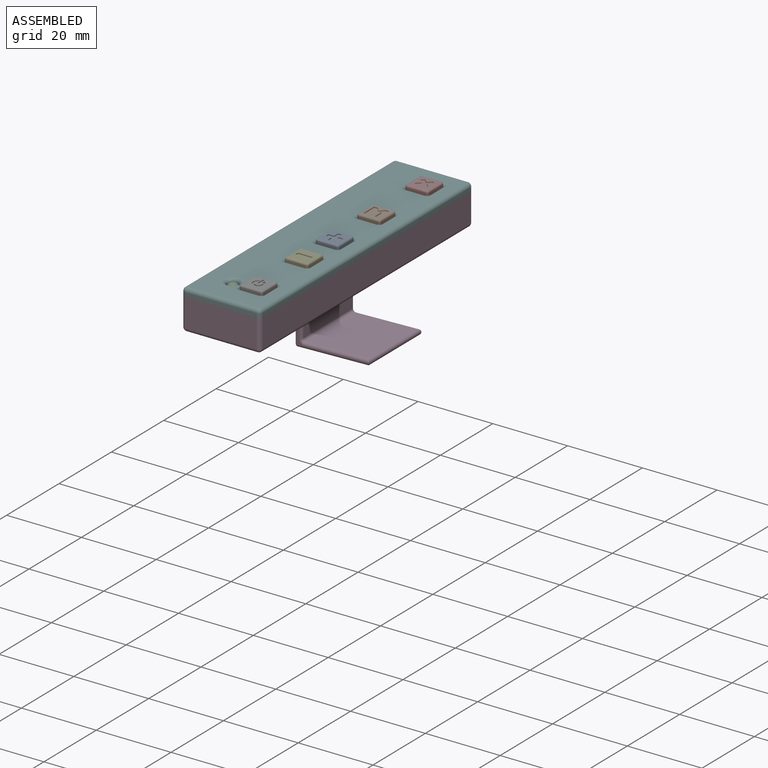
[diagram: assembled view]
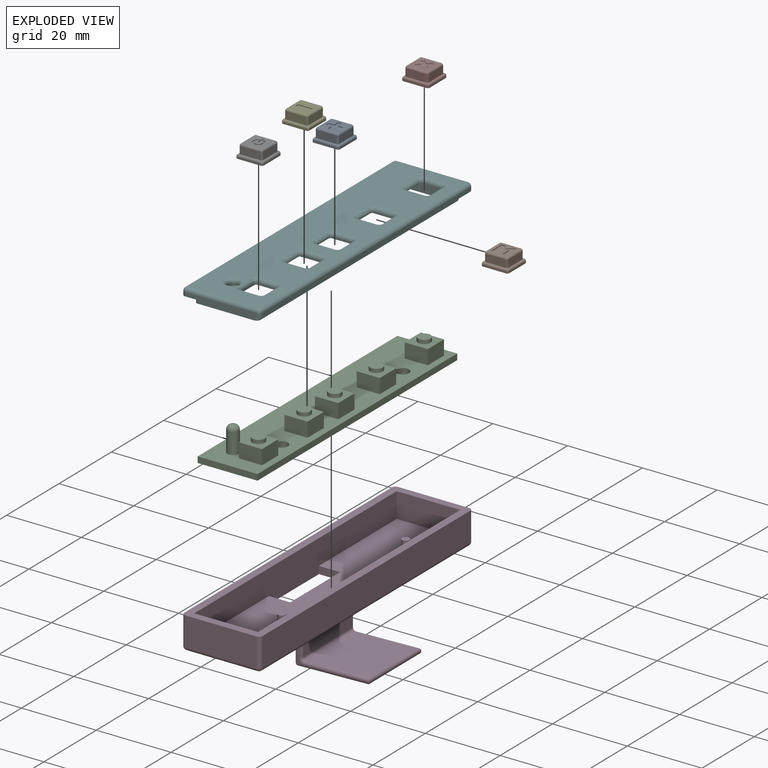
[diagram: exploded view]
GUIDED TOUR — MATED ASSEMBLY (Onshape document 3a90e2de162989032cab6924, AutoMate assembly 3a90e2de162989032cab6924_4101e83d1f49765928c57344_8ebfec06155e168b13daeaef_default)

This assembly has 8 components, labeled P0..P7 below (a component is one placed occurrence of a part; the same part can appear more than once), held together by 7 mates. A mate is a constraint between two components; its type names the relative motion it leaves free:
  PLANAR — leaves sliding in the plane through the listed point (normal = the listed direction) and rotation about that normal free.
Axis/direction vectors are unit vectors and 'through' points are millimeter coordinates, both in the assembly's world frame.

MATES
  1. PLANAR "Planar 6": P1 <-> P2, direction (0.000, 0.000, -1.000) through (2.96, 14.20, 5.10) mm
  2. PLANAR "Planar 4": P4 <-> P2, direction (0.000, 0.000, -1.000) through (2.96, -13.40, 5.10) mm
  3. PLANAR "Planar 7": P7 <-> P2, direction (0.000, 0.000, -1.000) through (2.96, 32.50, 5.10) mm
  4. PLANAR "Planar 1": P3 <-> P2, direction (0.000, 0.000, 1.000) through (0.30, -0.01, -1.40) mm
  5. PLANAR "Planar 3": P6 <-> P2, direction (0.000, 0.000, -1.000) through (2.96, -30.80, 5.10) mm
  6. PLANAR "Planar 2": P5 <-> P3, direction (0.000, 0.000, -1.000) through (-0.19, -0.06, 5.30) mm
  7. PLANAR "Planar 5": P0 <-> P2, direction (0.000, 0.000, -1.000) through (2.96, -1.70, 5.10) mm

ASSEMBLY ORDER
  1. P5 — the base component [order verified]
  2. P1 [order verified]
  3. P0 [order verified]
  4. P7 [order verified]
  5. P6 [order verified]
  6. P2 [order verified]
  7. P3 [order verified]
  8. P4 [order verified]
(P0, P2, P6, P7 verified with a relaxed clearance tolerance: the source model stores slight part interference there.)
Order-tag legend:
  [order verified] — this step's position reverses a verified removal order: the component was checked to insert without passing through the ones already placed.

Of the 8 components, 2 carry the full construction recipe — the FeatureScript program that regenerates the part's solid from scratch; the rest are supplied as boundary geometry only.
Each toured component is shown spotlighted twice — in the assembled view, then in the exploded view, where a leader line traces a displaced component back to its assembled socket (saturated green if recipe-attached, orange if geometry-only; every other component desaturated gray) — followed by its recipe or geometry summary and the mates that hold it.
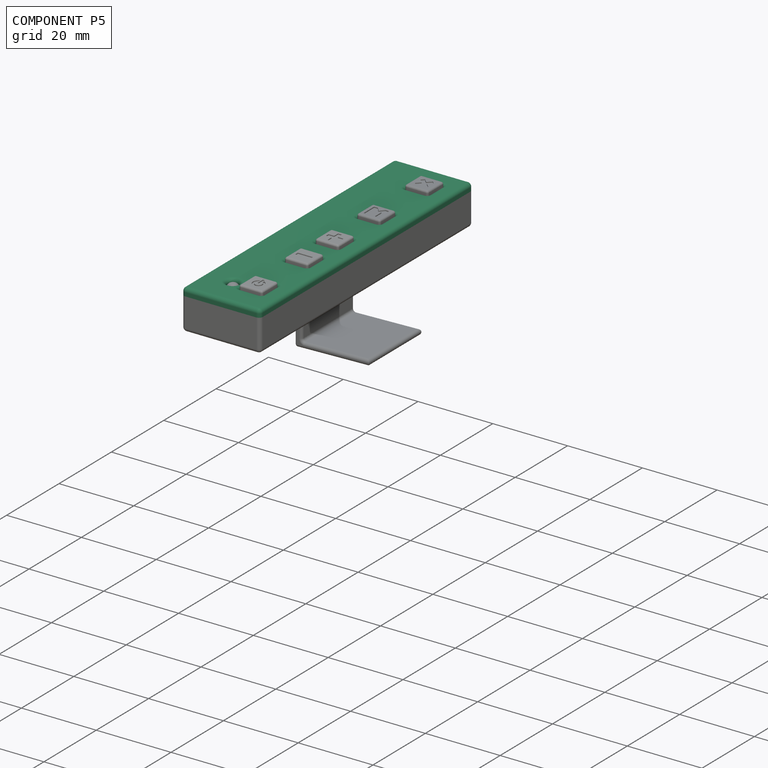
[diagram: component P5 — assembled]
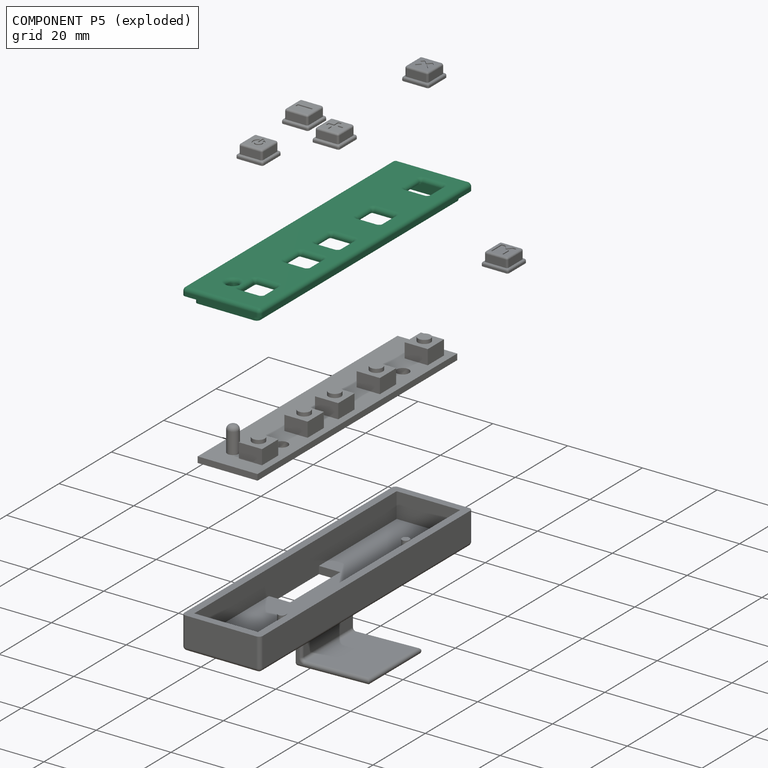
[diagram: component P5 — exploded]
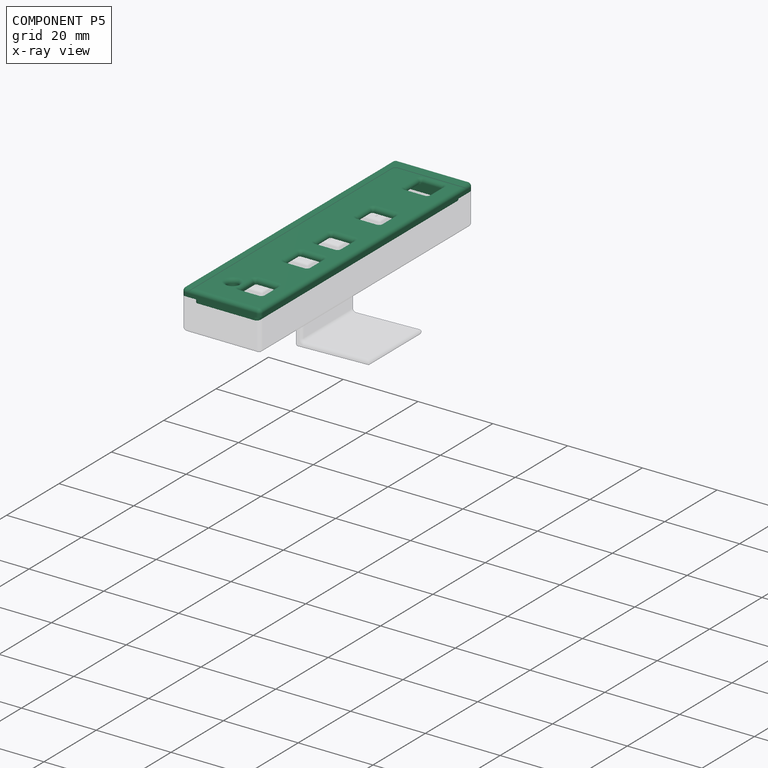
[diagram: component P5 — x-ray view]
COMPONENT P5 — recipe-attached (CADFS 00269412, mesh-verified: the recipe's output STEP matches this component's geometry to below the mesh-comparison resolution (tessellation chordal tolerance ~0.126 mm)).
Held by: PLANAR mate "Planar 2" to P3.
Construction recipe (FeatureScript — the CAD program that rebuilds this solid; sketch coordinates are in the units given by the * unit suffixes, e.g. mm):

FeatureScript 1511;
import(path : "onshape/std/geometry.fs", version : "1511.0");
import(path : "onshape/std/common.fs", version : "1511.0");
const mm = millimeter;
const VERTEX = EntityType.VERTEX;
const EDGE = EntityType.EDGE;
const FACE = EntityType.FACE;
const BODY = EntityType.BODY;
function v(x, y){return vector(x, y);}
function OD(order){return orderDisambiguation(order);}
function OSD(set){return originalSetDisambiguation(set);}
function TD(topology){return topologyDisambiguation(topology);}
function TDD(query){return trueDependencyDisambiguation(query);}
function sQuery(a, b, c) {return sketchEntityQuery(a, b, c);}

annotation { "Feature Type Name" : "Feature", "Feature Type Description" : "" }
export const myFeature = defineFeature(function(context is Context, id is Id, definition is map)
    precondition{}
    {
        {
            var Q0;
            Q0=qCreatedBy(makeId("Top.planeOp"),FACE);
            var sketch = newSketch(context, id + "F0", { "sketchPlane" : qUnion([Q0])});
            skLineSegment(sketch, "E0.bottom", {"start": v(8.5, 38.65) * mm, "end": v(-8.5, 38.65) * mm});
            skLineSegment(sketch, "E0.top", {"start": v(8.5, -38.65) * mm, "end": v(-8.5, -38.65) * mm});
            skLineSegment(sketch, "E0.left", {"start": v(8.5, 38.65) * mm, "end": v(8.5, -38.65) * mm});
            skLineSegment(sketch, "E0.right", {"start": v(-8.5, 38.65) * mm, "end": v(-8.5, -38.65) * mm});
            skPoint(sketch, "E0.middle", {"position": v(0, 0) * mm});
            skLineSegment(sketch, "E1.0", {"start": v(10.5, 40.65) * mm, "end": v(-10.5, 40.65) * mm});
            skLineSegment(sketch, "E1.1", {"start": v(10.5, 40.65) * mm, "end": v(10.5, -40.65) * mm});
            skLineSegment(sketch, "E1.2", {"start": v(10.5, -40.65) * mm, "end": v(-10.5, -40.65) * mm});
            skLineSegment(sketch, "E1.3", {"start": v(-10.5, 40.65) * mm, "end": v(-10.5, -40.65) * mm});
            skLineSegment(sketch, "E2.0", {"start": v(6.5, 36.65) * mm, "end": v(-6.5, 36.65) * mm});
            skLineSegment(sketch, "E2.1", {"start": v(6.5, 36.65) * mm, "end": v(6.5, -36.65) * mm});
            skLineSegment(sketch, "E2.2", {"start": v(6.5, -36.65) * mm, "end": v(-6.5, -36.65) * mm});
            skLineSegment(sketch, "E2.3", {"start": v(-6.5, 36.65) * mm, "end": v(-6.5, -36.65) * mm});
            skSolve(sketch);
        }
        {
            var Q0;
            Q0=makeQuery(id+"F0.imprint","IMPRINT",FACE,{"disambiguationData":[TD([[makeQuery(id+"F0.imprint","IMPRINT",EDGE,{"derivedFrom":sQuery(id+"F0.wireOp",EDGE,"E2.0")}),1.0]])]});
            var Q1;
            Q1=makeQuery(id+"F0.imprint","IMPRINT",FACE,{"disambiguationData":[TD([[makeQuery(id+"F0.imprint","IMPRINT",EDGE,{"derivedFrom":sQuery(id+"F0.wireOp",EDGE,"E0.bottom")}),1.0]])]});
            var Q2;
            Q2=makeQuery(id+"F0.imprint","IMPRINT",FACE,{"disambiguationData":[TD([[makeQuery(id+"F0.imprint","IMPRINT",EDGE,{"derivedFrom":sQuery(id+"F0.wireOp",EDGE,"E0.bottom")}),-1.0]])]});
            extrude(context, id + "F1", {"entities" : qUnion([Q0, Q1, Q2]), "depth" : 2 * mm});
        }
        {
            var Q0;
            Q0=makeQuery(id+"F0.imprint","IMPRINT",FACE,{"disambiguationData":[TD([[makeQuery(id+"F0.imprint","IMPRINT",EDGE,{"derivedFrom":sQuery(id+"F0.wireOp",EDGE,"E0.bottom")}),1.0]])]});
            extrude(context, id + "F2", {"entities" : qUnion([Q0]), "operationType" : NewBodyOperationType.ADD, "oppositeDirection" : true, "depth" : 2 * mm});
        }
        {
            var Q0;
            Q0=makeQuery(id+"F1.opExtrude","CAP_FACE",FACE,{"disambiguationData":[OSD([sQuery(id+"F0.wireOp",EDGE,"E1.0"),sQuery(id+"F0.wireOp",EDGE,"E1.1"),sQuery(id+"F0.wireOp",EDGE,"E1.2"),sQuery(id+"F0.wireOp",EDGE,"E1.3")])],"isStart":false});
            var sketch = newSketch(context, id + "F3", { "sketchPlane" : qUnion([Q0])});
            skLineSegment(sketch, "E3.bottom", {"start": v(5.7, 35.65) * mm, "end": v(0.5, 35.65) * mm});
            skLineSegment(sketch, "E3.top", {"start": v(5.7, 29.45) * mm, "end": v(0.5, 29.45) * mm});
            skLineSegment(sketch, "E3.left", {"start": v(6.2, 35.15) * mm, "end": v(6.2, 29.95) * mm});
            skLineSegment(sketch, "E3.right", {"start": v(0, 35.15) * mm, "end": v(0, 29.95) * mm});
            skLineSegment(sketch, "E4.bottom", {"start": v(5.7, 17.35) * mm, "end": v(0.5, 17.35) * mm});
            skLineSegment(sketch, "E4.top", {"start": v(5.7, 11.15) * mm, "end": v(0.5, 11.15) * mm});
            skLineSegment(sketch, "E4.left", {"start": v(6.2, 16.85) * mm, "end": v(6.2, 11.65) * mm});
            skLineSegment(sketch, "E4.right", {"start": v(0, 16.85) * mm, "end": v(0, 11.65) * mm});
            skLineSegment(sketch, "E5.bottom", {"start": v(0.5, 1.45) * mm, "end": v(5.7, 1.45) * mm});
            skLineSegment(sketch, "E5.top", {"start": v(0.5, -4.75) * mm, "end": v(5.7, -4.75) * mm});
            skLineSegment(sketch, "E5.left", {"start": v(0, 0.95) * mm, "end": v(0, -4.25) * mm});
            skLineSegment(sketch, "E5.right", {"start": v(6.2, 0.95) * mm, "end": v(6.2, -4.25) * mm});
            skLineSegment(sketch, "E6.bottom", {"start": v(5.7, -10.25) * mm, "end": v(0.5, -10.25) * mm});
            skLineSegment(sketch, "E6.top", {"start": v(5.7, -16.45) * mm, "end": v(0.5, -16.45) * mm});
            skLineSegment(sketch, "E6.left", {"start": v(6.2, -10.75) * mm, "end": v(6.2, -15.95) * mm});
            skLineSegment(sketch, "E6.right", {"start": v(0, -10.75) * mm, "end": v(0, -15.95) * mm});
            skLineSegment(sketch, "E7.bottom", {"start": v(5.7, -27.65) * mm, "end": v(0.5, -27.65) * mm});
            skLineSegment(sketch, "E7.top", {"start": v(5.7, -33.85) * mm, "end": v(0.5, -33.85) * mm});
            skLineSegment(sketch, "E7.left", {"start": v(6.2, -28.15) * mm, "end": v(6.2, -33.35) * mm});
            skLineSegment(sketch, "E7.right", {"start": v(0, -28.15) * mm, "end": v(0, -33.35) * mm});
            skPoint(sketch, "E8.visualSharp", {"position": v(6.2, 17.35) * mm});
            skArc(sketch, "E8.filletArc", {"start": v(6.2, 16.85) * mm, "mid": v(6.05, 17.2) * mm, "end": v(5.7, 17.35) * mm});
            skPoint(sketch, "E9.visualSharp", {"position": v(0, 17.35) * mm});
            skArc(sketch, "E9.filletArc", {"start": v(0.5, 17.35) * mm, "mid": v(0.15, 17.2) * mm, "end": v(0, 16.85) * mm});
            skPoint(sketch, "E10.visualSharp", {"position": v(0, 11.15) * mm});
            skArc(sketch, "E10.filletArc", {"start": v(0, 11.65) * mm, "mid": v(0.15, 11.3) * mm, "end": v(0.5, 11.15) * mm});
            skPoint(sketch, "E11.visualSharp", {"position": v(6.2, 11.15) * mm});
            skArc(sketch, "E11.filletArc", {"start": v(5.7, 11.15) * mm, "mid": v(6.05, 11.3) * mm, "end": v(6.2, 11.65) * mm});
            skPoint(sketch, "E12.visualSharp", {"position": v(6.2, 29.45) * mm});
            skArc(sketch, "E12.filletArc", {"start": v(5.7, 29.45) * mm, "mid": v(6.05, 29.6) * mm, "end": v(6.2, 29.95) * mm});
            skPoint(sketch, "E13.visualSharp", {"position": v(6.2, 35.65) * mm});
            skArc(sketch, "E13.filletArc", {"start": v(6.2, 35.15) * mm, "mid": v(6.05, 35.5) * mm, "end": v(5.7, 35.65) * mm});
            skPoint(sketch, "E14.visualSharp", {"position": v(0, 35.65) * mm});
            skArc(sketch, "E14.filletArc", {"start": v(0.5, 35.65) * mm, "mid": v(0.15, 35.5) * mm, "end": v(0, 35.15) * mm});
            skPoint(sketch, "E15.visualSharp", {"position": v(0, 29.45) * mm});
            skArc(sketch, "E15.filletArc", {"start": v(0, 29.95) * mm, "mid": v(0.15, 29.6) * mm, "end": v(0.5, 29.45) * mm});
            skPoint(sketch, "E16.visualSharp", {"position": v(0, 1.45) * mm});
            skArc(sketch, "E16.filletArc", {"start": v(0.5, 1.45) * mm, "mid": v(0.15, 1.3) * mm, "end": v(0, 0.95) * mm});
            skPoint(sketch, "E17.visualSharp", {"position": v(0, -4.75) * mm});
            skArc(sketch, "E17.filletArc", {"start": v(0, -4.25) * mm, "mid": v(0.15, -4.6) * mm, "end": v(0.5, -4.75) * mm});
            skPoint(sketch, "E18.visualSharp", {"position": v(6.2, 1.45) * mm});
            skArc(sketch, "E18.filletArc", {"start": v(6.2, 0.95) * mm, "mid": v(6.05, 1.3) * mm, "end": v(5.7, 1.45) * mm});
            skPoint(sketch, "E19.visualSharp", {"position": v(6.2, -4.75) * mm});
            skArc(sketch, "E19.filletArc", {"start": v(5.7, -4.75) * mm, "mid": v(6.05, -4.6) * mm, "end": v(6.2, -4.25) * mm});
            skPoint(sketch, "E20.visualSharp", {"position": v(0, -10.25) * mm});
            skArc(sketch, "E20.filletArc", {"start": v(0.5, -10.25) * mm, "mid": v(0.15, -10.4) * mm, "end": v(0, -10.75) * mm});
            skPoint(sketch, "E21.visualSharp", {"position": v(0, -16.45) * mm});
            skArc(sketch, "E21.filletArc", {"start": v(0, -15.95) * mm, "mid": v(0.15, -16.3) * mm, "end": v(0.5, -16.45) * mm});
            skPoint(sketch, "E22.visualSharp", {"position": v(6.2, -16.45) * mm});
            skArc(sketch, "E22.filletArc", {"start": v(5.7, -16.45) * mm, "mid": v(6.05, -16.3) * mm, "end": v(6.2, -15.95) * mm});
            skPoint(sketch, "E23.visualSharp", {"position": v(6.2, -10.25) * mm});
            skArc(sketch, "E23.filletArc", {"start": v(6.2, -10.75) * mm, "mid": v(6.05, -10.4) * mm, "end": v(5.7, -10.25) * mm});
            skPoint(sketch, "E24.visualSharp", {"position": v(0, -27.65) * mm});
            skArc(sketch, "E24.filletArc", {"start": v(0.5, -27.65) * mm, "mid": v(0.15, -27.8) * mm, "end": v(0, -28.15) * mm});
            skPoint(sketch, "E25.visualSharp", {"position": v(0, -33.85) * mm});
            skArc(sketch, "E25.filletArc", {"start": v(0, -33.35) * mm, "mid": v(0.15, -33.7) * mm, "end": v(0.5, -33.85) * mm});
            skPoint(sketch, "E26.visualSharp", {"position": v(6.2, -33.85) * mm});
            skArc(sketch, "E26.filletArc", {"start": v(5.7, -33.85) * mm, "mid": v(6.05, -33.7) * mm, "end": v(6.2, -33.35) * mm});
            skPoint(sketch, "E27.visualSharp", {"position": v(6.2, -27.65) * mm});
            skArc(sketch, "E27.filletArc", {"start": v(6.2, -28.15) * mm, "mid": v(6.05, -27.8) * mm, "end": v(5.7, -27.65) * mm});
            skCircle(sketch, "E28", {"center": v(-2.9, -31.95) * mm, "radius": 1.5 * mm});
            skSolve(sketch);
        }
        {
            var Q0;
            Q0=makeQuery(id+"F3.imprint","IMPRINT",FACE,{"disambiguationData":[TD([[makeQuery(id+"F3.imprint","IMPRINT",EDGE,{"derivedFrom":sQuery(id+"F3.wireOp",EDGE,"E3.bottom")}),1.0]])]});
            var Q1;
            Q1=makeQuery(id+"F3.imprint","IMPRINT",FACE,{"disambiguationData":[TD([[makeQuery(id+"F3.imprint","IMPRINT",EDGE,{"derivedFrom":sQuery(id+"F3.wireOp",EDGE,"E4.bottom")}),1.0]])]});
            var Q2;
            Q2=makeQuery(id+"F3.imprint","IMPRINT",FACE,{"disambiguationData":[TD([[makeQuery(id+"F3.imprint","IMPRINT",EDGE,{"derivedFrom":sQuery(id+"F3.wireOp",EDGE,"E5.bottom")}),-1.0]])]});
            var Q3;
            Q3=makeQuery(id+"F3.imprint","IMPRINT",FACE,{"disambiguationData":[TD([[makeQuery(id+"F3.imprint","IMPRINT",EDGE,{"derivedFrom":sQuery(id+"F3.wireOp",EDGE,"E6.bottom")}),1.0]])]});
            var Q4;
            Q4=makeQuery(id+"F3.imprint","IMPRINT",FACE,{"disambiguationData":[TD([[makeQuery(id+"F3.imprint","IMPRINT",EDGE,{"derivedFrom":sQuery(id+"F3.wireOp",EDGE,"E7.bottom")}),1.0]])]});
            var Q5;
            Q5=makeQuery(id+"F3.imprint","IMPRINT",FACE,{"disambiguationData":[TD([[makeQuery(id+"F3.imprint","IMPRINT",EDGE,{"derivedFrom":sQuery(id+"F3.wireOp",EDGE,"E28")}),1.0]])]});
            extrude(context, id + "F4", {"entities" : qUnion([Q0, Q1, Q2, Q3, Q4, Q5]), "operationType" : NewBodyOperationType.REMOVE, "oppositeDirection" : true, "depth" : 25 * mm});
        }
        {
            var Q0;
            Q0=makeQuery(id+"F1.opExtrude","CAP_FACE",FACE,{"disambiguationData":[OSD([sQuery(id+"F0.wireOp",EDGE,"E1.0"),sQuery(id+"F0.wireOp",EDGE,"E1.1"),sQuery(id+"F0.wireOp",EDGE,"E1.2"),sQuery(id+"F0.wireOp",EDGE,"E1.3")])],"isStart":false});
            var Q1;
            Q1=makeQuery(id+"F1.opExtrude","SWEPT_EDGE",EDGE,{"disambiguationData":[OSD([sQuery(id+"F0.wireOp",EDGE,"E1.1"),sQuery(id+"F0.wireOp",EDGE,"E1.2")])]});
            var Q2;
            Q2=makeQuery(id+"F1.opExtrude","SWEPT_EDGE",EDGE,{"disambiguationData":[OSD([sQuery(id+"F0.wireOp",EDGE,"E1.2"),sQuery(id+"F0.wireOp",EDGE,"E1.3")])]});
            var Q3;
            Q3=makeQuery(id+"F1.opExtrude","SWEPT_EDGE",EDGE,{"disambiguationData":[OSD([sQuery(id+"F0.wireOp",EDGE,"E1.0"),sQuery(id+"F0.wireOp",EDGE,"E1.3")])]});
            var Q4;
            Q4=makeQuery(id+"F1.opExtrude","SWEPT_EDGE",EDGE,{"disambiguationData":[OSD([sQuery(id+"F0.wireOp",EDGE,"E1.0"),sQuery(id+"F0.wireOp",EDGE,"E1.1")])]});
            var Q5;
            Q5=makeQuery(id+"F2.opExtrude","SWEPT_EDGE",EDGE,{"disambiguationData":[OSD([sQuery(id+"F0.wireOp",EDGE,"E0.bottom"),sQuery(id+"F0.wireOp",EDGE,"E0.left")])]});
            var Q6;
            Q6=makeQuery(id+"F2.opExtrude","SWEPT_EDGE",EDGE,{"disambiguationData":[OSD([sQuery(id+"F0.wireOp",EDGE,"E0.bottom"),sQuery(id+"F0.wireOp",EDGE,"E0.right")])]});
            var Q7;
            Q7=makeQuery(id+"F2.opExtrude","SWEPT_EDGE",EDGE,{"disambiguationData":[OSD([sQuery(id+"F0.wireOp",EDGE,"E0.top"),sQuery(id+"F0.wireOp",EDGE,"E0.left")])]});
            var Q8;
            Q8=makeQuery(id+"F2.opExtrude","SWEPT_EDGE",EDGE,{"disambiguationData":[OSD([sQuery(id+"F0.wireOp",EDGE,"E0.top"),sQuery(id+"F0.wireOp",EDGE,"E0.right")])]});
            fillet(context, id + "F5", {"entities" : qUnion([Q0, Q1, Q2, Q3, Q4, Q5, Q6, Q7, Q8]), "radius" : 1 * mm, "tangentPropagation" : true, "allowEdgeOverflow" : false});
        }
        {
            var Q0;
            Q0=makeQuery(id+"F0.imprint","IMPRINT",FACE,{"disambiguationData":[TD([[makeQuery(id+"F0.imprint","IMPRINT",EDGE,{"derivedFrom":sQuery(id+"F0.wireOp",EDGE,"E2.0")}),1.0]])]});
            var sketch = newSketch(context, id + "F6", { "sketchPlane" : qUnion([Q0])});
            skLineSegment(sketch, "E29.bottom", {"start": v(0, -26.65) * mm, "end": v(7.2, -26.65) * mm});
            skLineSegment(sketch, "E29.top", {"start": v(0, -34.85) * mm, "end": v(7.2, -34.85) * mm});
            skLineSegment(sketch, "E29.left", {"start": v(-0.5, -27.15) * mm, "end": v(-0.5, -34.35) * mm});
            skLineSegment(sketch, "E29.right", {"start": v(7.7, -27.15) * mm, "end": v(7.7, -34.35) * mm});
            skPoint(sketch, "E29.middle", {"position": v(3.6, -30.75) * mm});
            skLineSegment(sketch, "E30.bottom", {"start": v(-0.5, 36.65) * mm, "end": v(6.7, 36.65) * mm});
            skLineSegment(sketch, "E30.top", {"start": v(-0.5, 28.45) * mm, "end": v(6.7, 28.45) * mm});
            skLineSegment(sketch, "E30.left", {"start": v(-1, 36.15) * mm, "end": v(-1, 28.95) * mm});
            skLineSegment(sketch, "E30.right", {"start": v(7.2, 36.15) * mm, "end": v(7.2, 28.95) * mm});
            skPoint(sketch, "E30.middle", {"position": v(3.1, 32.55) * mm});
            skLineSegment(sketch, "E31.bottom", {"start": v(-0.5, 18.35) * mm, "end": v(6.7, 18.35) * mm});
            skLineSegment(sketch, "E31.top", {"start": v(-0.5, 10.15) * mm, "end": v(6.7, 10.15) * mm});
            skLineSegment(sketch, "E31.left", {"start": v(-1, 17.85) * mm, "end": v(-1, 10.65) * mm});
            skLineSegment(sketch, "E31.right", {"start": v(7.2, 17.85) * mm, "end": v(7.2, 10.65) * mm});
            skPoint(sketch, "E31.middle", {"position": v(3.1, 14.25) * mm});
            skLineSegment(sketch, "E32.bottom", {"start": v(-0.5, 2.45) * mm, "end": v(6.7, 2.45) * mm});
            skLineSegment(sketch, "E32.top", {"start": v(-0.5, -5.75) * mm, "end": v(6.7, -5.75) * mm});
            skLineSegment(sketch, "E32.left", {"start": v(-1, 1.95) * mm, "end": v(-1, -5.25) * mm});
            skLineSegment(sketch, "E32.right", {"start": v(7.2, 1.95) * mm, "end": v(7.2, -5.25) * mm});
            skPoint(sketch, "E32.middle", {"position": v(3.1, -1.65) * mm});
            skLineSegment(sketch, "E33.bottom", {"start": v(-0.5, -9.25) * mm, "end": v(6.7, -9.25) * mm});
            skLineSegment(sketch, "E33.top", {"start": v(-0.5, -17.45) * mm, "end": v(6.7, -17.45) * mm});
            skLineSegment(sketch, "E33.left", {"start": v(-1, -9.75) * mm, "end": v(-1, -16.95) * mm});
            skLineSegment(sketch, "E33.right", {"start": v(7.2, -9.75) * mm, "end": v(7.2, -16.95) * mm});
            skPoint(sketch, "E33.middle", {"position": v(3.1, -13.35) * mm});
            skPoint(sketch, "E34.visualSharp", {"position": v(7.2, -9.25) * mm});
            skArc(sketch, "E34.filletArc", {"start": v(7.2, -9.75) * mm, "mid": v(7.05, -9.4) * mm, "end": v(6.7, -9.25) * mm});
            skPoint(sketch, "E35.visualSharp", {"position": v(7.2, -17.45) * mm});
            skArc(sketch, "E35.filletArc", {"start": v(6.7, -17.45) * mm, "mid": v(7.05, -17.3) * mm, "end": v(7.2, -16.95) * mm});
            skPoint(sketch, "E36.visualSharp", {"position": v(-1, -17.45) * mm});
            skArc(sketch, "E36.filletArc", {"start": v(-1, -16.95) * mm, "mid": v(-0.85, -17.3) * mm, "end": v(-0.5, -17.45) * mm});
            skPoint(sketch, "E37.visualSharp", {"position": v(-1, -9.25) * mm});
            skArc(sketch, "E37.filletArc", {"start": v(-0.5, -9.25) * mm, "mid": v(-0.85, -9.4) * mm, "end": v(-1, -9.75) * mm});
            skPoint(sketch, "E38.visualSharp", {"position": v(7.2, -5.75) * mm});
            skArc(sketch, "E38.filletArc", {"start": v(6.7, -5.75) * mm, "mid": v(7.05, -5.6) * mm, "end": v(7.2, -5.25) * mm});
            skPoint(sketch, "E39.visualSharp", {"position": v(-1, -5.75) * mm});
            skArc(sketch, "E39.filletArc", {"start": v(-1, -5.25) * mm, "mid": v(-0.85, -5.6) * mm, "end": v(-0.5, -5.75) * mm});
            skPoint(sketch, "E40.visualSharp", {"position": v(-1, 2.45) * mm});
            skArc(sketch, "E40.filletArc", {"start": v(-0.5, 2.45) * mm, "mid": v(-0.85, 2.3) * mm, "end": v(-1, 1.95) * mm});
            skPoint(sketch, "E41.visualSharp", {"position": v(7.2, 2.45) * mm});
            skArc(sketch, "E41.filletArc", {"start": v(7.2, 1.95) * mm, "mid": v(7.05, 2.3) * mm, "end": v(6.7, 2.45) * mm});
            skPoint(sketch, "E42.visualSharp", {"position": v(7.2, 18.35) * mm});
            skArc(sketch, "E42.filletArc", {"start": v(7.2, 17.85) * mm, "mid": v(7.05, 18.2) * mm, "end": v(6.7, 18.35) * mm});
            skPoint(sketch, "E43.visualSharp", {"position": v(7.2, 10.15) * mm});
            skArc(sketch, "E43.filletArc", {"start": v(6.7, 10.15) * mm, "mid": v(7.05, 10.3) * mm, "end": v(7.2, 10.65) * mm});
            skPoint(sketch, "E44.visualSharp", {"position": v(-1, 10.15) * mm});
            skArc(sketch, "E44.filletArc", {"start": v(-1, 10.65) * mm, "mid": v(-0.85, 10.3) * mm, "end": v(-0.5, 10.15) * mm});
            skPoint(sketch, "E45.visualSharp", {"position": v(-1, 18.35) * mm});
            skArc(sketch, "E45.filletArc", {"start": v(-0.5, 18.35) * mm, "mid": v(-0.85, 18.2) * mm, "end": v(-1, 17.85) * mm});
            skPoint(sketch, "E46.visualSharp", {"position": v(7.2, 36.65) * mm});
            skArc(sketch, "E46.filletArc", {"start": v(7.2, 36.15) * mm, "mid": v(7.05, 36.5) * mm, "end": v(6.7, 36.65) * mm});
            skPoint(sketch, "E47.visualSharp", {"position": v(7.2, 28.45) * mm});
            skArc(sketch, "E47.filletArc", {"start": v(6.7, 28.45) * mm, "mid": v(7.05, 28.6) * mm, "end": v(7.2, 28.95) * mm});
            skPoint(sketch, "E48.visualSharp", {"position": v(-1, 28.45) * mm});
            skArc(sketch, "E48.filletArc", {"start": v(-1, 28.95) * mm, "mid": v(-0.85, 28.6) * mm, "end": v(-0.5, 28.45) * mm});
            skPoint(sketch, "E49.visualSharp", {"position": v(-1, 36.65) * mm});
            skArc(sketch, "E49.filletArc", {"start": v(-0.5, 36.65) * mm, "mid": v(-0.85, 36.5) * mm, "end": v(-1, 36.15) * mm});
            skPoint(sketch, "E50.visualSharp", {"position": v(7.7, -26.65) * mm});
            skArc(sketch, "E50.filletArc", {"start": v(7.7, -27.15) * mm, "mid": v(7.55, -26.8) * mm, "end": v(7.2, -26.65) * mm});
            skPoint(sketch, "E51.visualSharp", {"position": v(7.7, -34.85) * mm});
            skArc(sketch, "E51.filletArc", {"start": v(7.2, -34.85) * mm, "mid": v(7.55, -34.7) * mm, "end": v(7.7, -34.35) * mm});
            skPoint(sketch, "E52.visualSharp", {"position": v(-0.5, -34.85) * mm});
            skArc(sketch, "E52.filletArc", {"start": v(-0.5, -34.35) * mm, "mid": v(-0.35, -34.7) * mm, "end": v(0, -34.85) * mm});
            skPoint(sketch, "E53.visualSharp", {"position": v(-0.5, -26.65) * mm});
            skArc(sketch, "E53.filletArc", {"start": v(0, -26.65) * mm, "mid": v(-0.35, -26.8) * mm, "end": v(-0.5, -27.15) * mm});
            skSolve(sketch);
        }
        {
            var Q0;
            Q0=makeQuery(id+"F6.imprint","IMPRINT",FACE,{"disambiguationData":[TD([[makeQuery(id+"F6.imprint","IMPRINT",EDGE,{"derivedFrom":sQuery(id+"F6.wireOp",EDGE,"E29.left")}),1.0]])]});
            var Q1;
            Q1=makeQuery(id+"F6.imprint","IMPRINT",FACE,{"disambiguationData":[TD([[makeQuery(id+"F6.imprint","IMPRINT",EDGE,{"derivedFrom":sQuery(id+"F6.wireOp",EDGE,"E29.right")}),-1.0]])]});
            var Q2;
            Q2=makeQuery(id+"F6.imprint","IMPRINT",FACE,{"disambiguationData":[TD([[makeQuery(id+"F6.imprint","IMPRINT",EDGE,{"derivedFrom":sQuery(id+"F6.wireOp",EDGE,"E33.left")}),1.0]])]});
            var Q3;
            Q3=makeQuery(id+"F6.imprint","IMPRINT",FACE,{"disambiguationData":[TD([[makeQuery(id+"F6.imprint","IMPRINT",EDGE,{"derivedFrom":sQuery(id+"F6.wireOp",EDGE,"E33.right")}),-1.0]])]});
            var Q4;
            Q4=makeQuery(id+"F6.imprint","IMPRINT",FACE,{"disambiguationData":[TD([[makeQuery(id+"F6.imprint","IMPRINT",EDGE,{"derivedFrom":sQuery(id+"F6.wireOp",EDGE,"E32.left")}),1.0]])]});
            var Q5;
            Q5=makeQuery(id+"F6.imprint","IMPRINT",FACE,{"disambiguationData":[TD([[makeQuery(id+"F6.imprint","IMPRINT",EDGE,{"derivedFrom":sQuery(id+"F6.wireOp",EDGE,"E32.right")}),-1.0]])]});
            var Q6;
            Q6=makeQuery(id+"F6.imprint","IMPRINT",FACE,{"disambiguationData":[TD([[makeQuery(id+"F6.imprint","IMPRINT",EDGE,{"derivedFrom":sQuery(id+"F6.wireOp",EDGE,"E31.left")}),1.0]])]});
            var Q7;
            Q7=makeQuery(id+"F6.imprint","IMPRINT",FACE,{"disambiguationData":[TD([[makeQuery(id+"F6.imprint","IMPRINT",EDGE,{"derivedFrom":sQuery(id+"F6.wireOp",EDGE,"E31.right")}),-1.0]])]});
            var Q8;
            {var subQ1=sQuery(id+"F6.wireOp",EDGE,"E30.left");Q8=makeQuery(id+"F6.imprint","IMPRINT",FACE,{"disambiguationData":[TD([[makeQuery(id+"F6.imprint","IMPRINT",EDGE,{"derivedFrom":subQ1}),1.0]])]});}
            var Q9;
            Q9=makeQuery(id+"F6.imprint","IMPRINT",FACE,{"disambiguationData":[TD([[makeQuery(id+"F6.imprint","IMPRINT",EDGE,{"derivedFrom":sQuery(id+"F6.wireOp",EDGE,"E30.bottom")}),-1.0]])]});
            extrude(context, id + "F7", {"entities" : qUnion([Q0, Q1, Q2, Q3, Q4, Q5, Q6, Q7, Q8, Q9]), "operationType" : NewBodyOperationType.REMOVE, "depth" : 1 * mm, "hasSecondDirection" : true, "secondDirectionOppositeDirection" : true, "secondDirectionDepth" : 3 * mm});
        }
    });
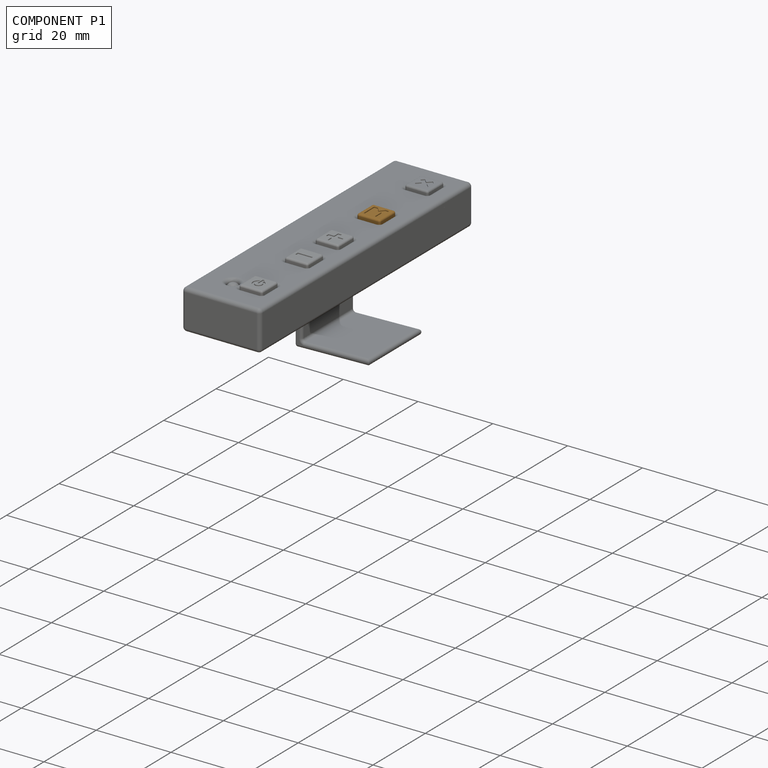
[diagram: component P1 — assembled]
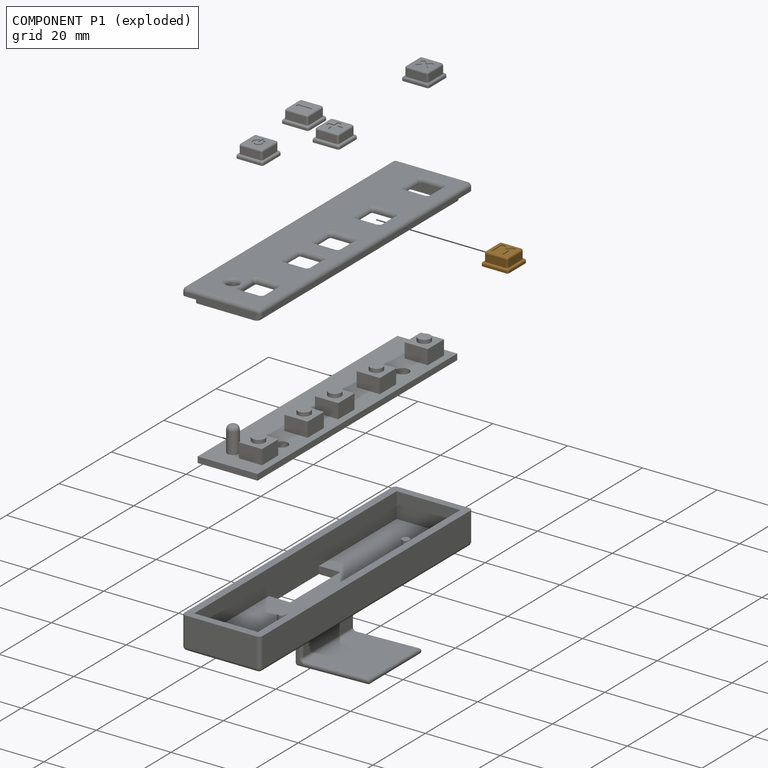
[diagram: component P1 — exploded]
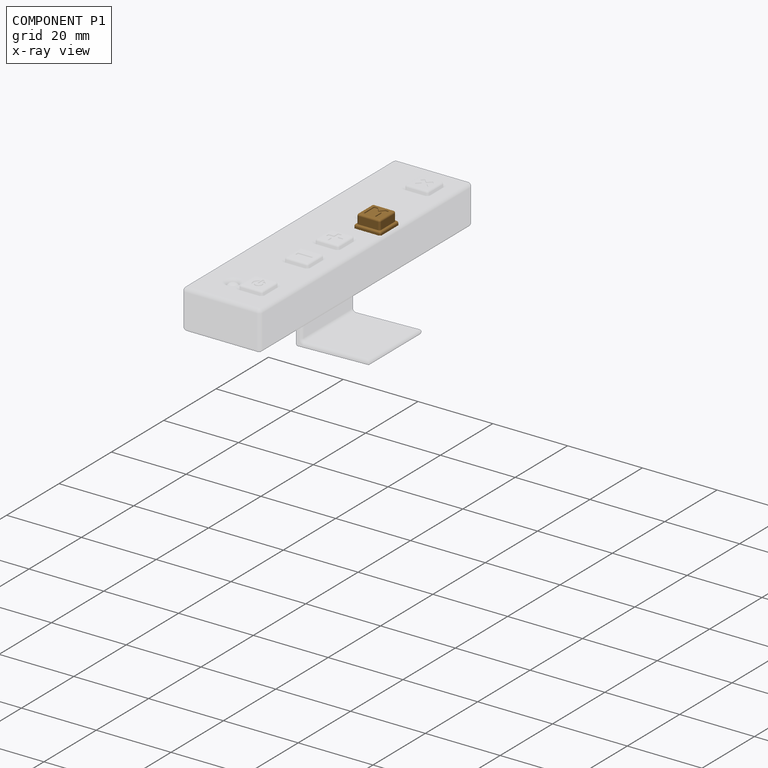
[diagram: component P1 — x-ray view]
COMPONENT P1 — geometry summary (no construction recipe available for this part):
  bounding box: 7.2 x 7.2 x 3.5 mm
  B-rep topology: 1 solid, 53 faces, 238 edges
  volume: 137 mm^3 (76% of its bounding box)
  symmetry: mirror-symmetric across its x mid-plane
Held by: PLANAR mate "Planar 6" to P2.
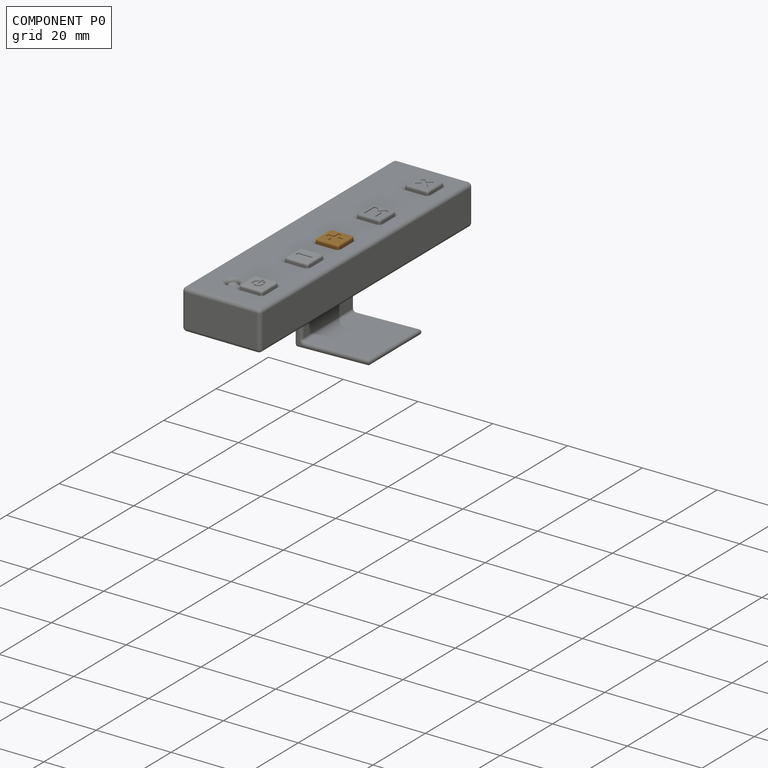
[diagram: component P0 — assembled]
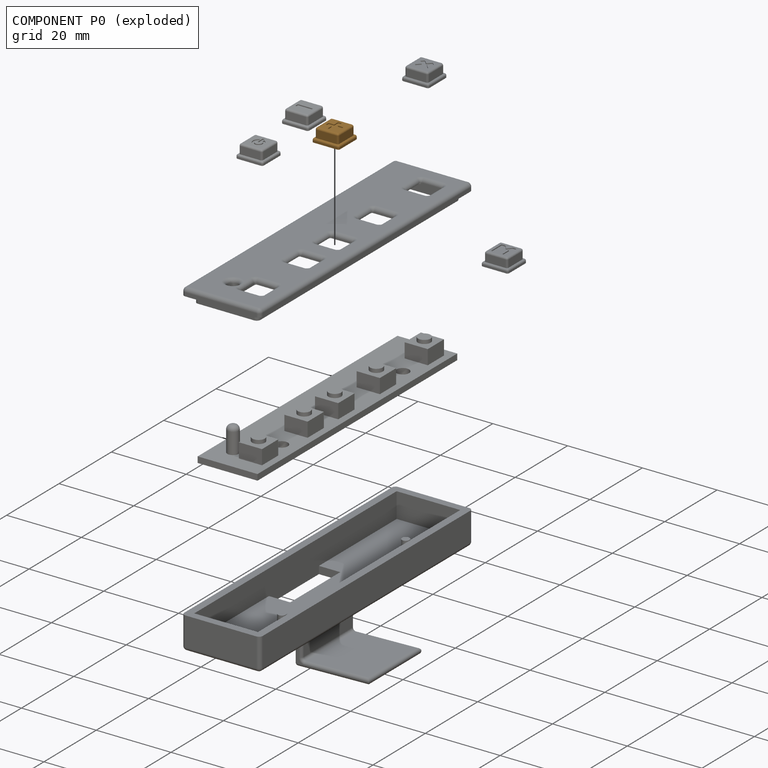
[diagram: component P0 — exploded]
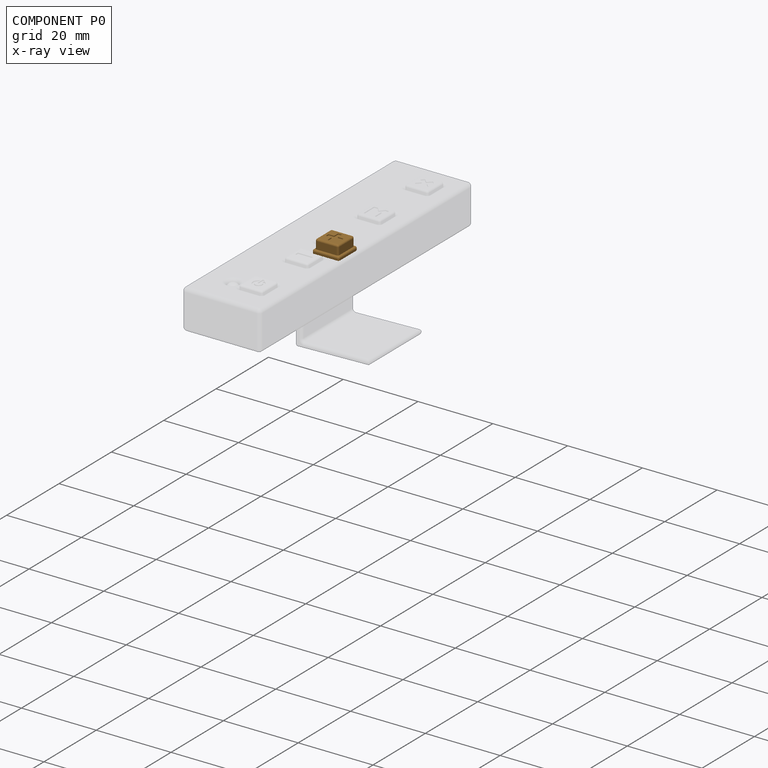
[diagram: component P0 — x-ray view]
COMPONENT P0 — geometry summary (no construction recipe available for this part):
  bounding box: 7.2 x 7.2 x 3.5 mm
  B-rep topology: 1 solid, 53 faces, 238 edges
  volume: 138 mm^3 (76% of its bounding box)
  symmetry: 4-fold rotationally symmetric about the z axis; mirror-symmetric across its x mid-plane, y mid-plane
Held by: PLANAR mate "Planar 5" to P2.
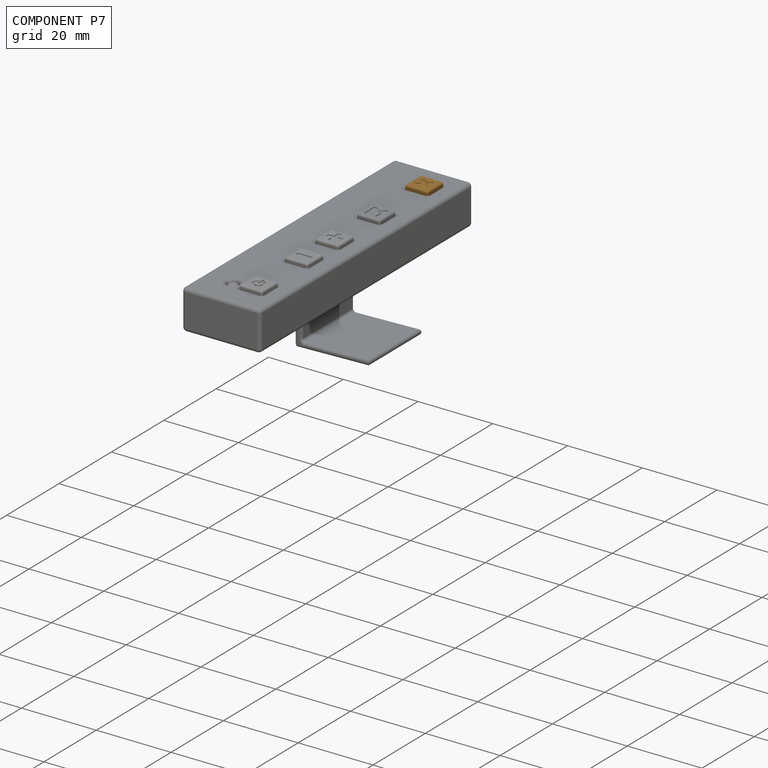
[diagram: component P7 — assembled]
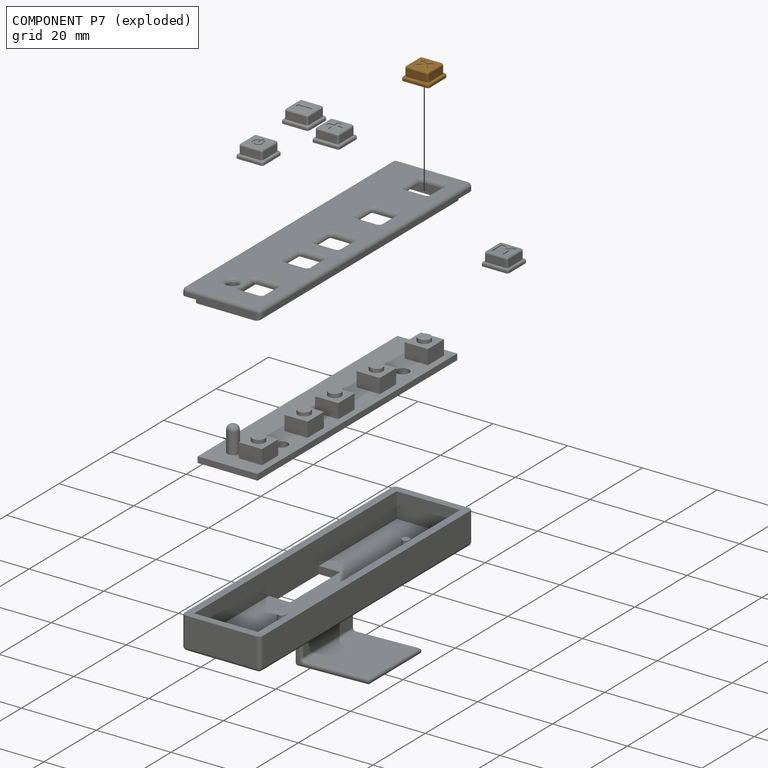
[diagram: component P7 — exploded]
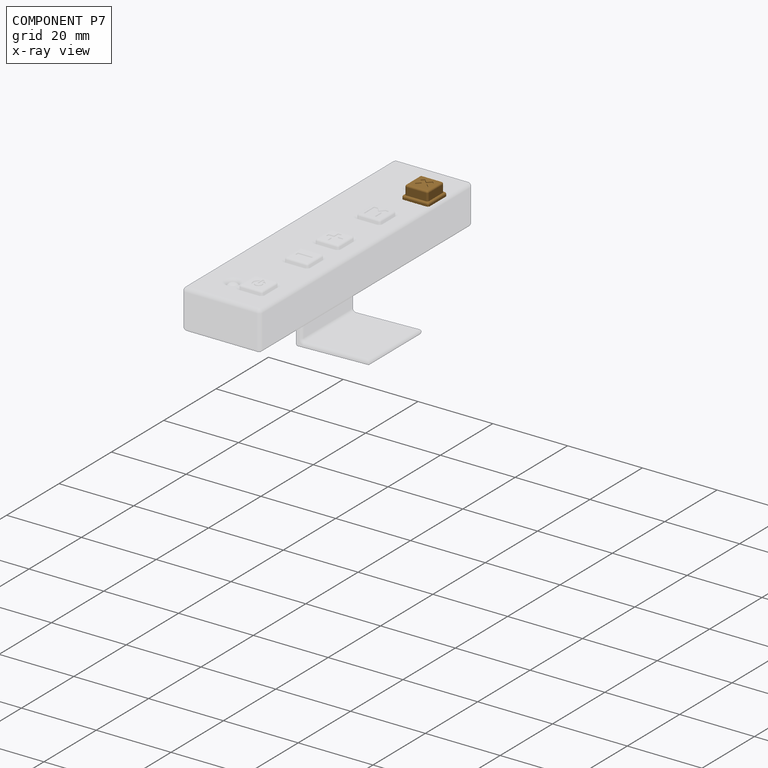
[diagram: component P7 — x-ray view]
COMPONENT P7 — geometry summary (no construction recipe available for this part):
  bounding box: 7.2 x 7.2 x 3.5 mm
  B-rep topology: 1 solid, 53 faces, 238 edges
  volume: 138 mm^3 (76% of its bounding box)
  symmetry: 4-fold rotationally symmetric about the z axis; mirror-symmetric across its x mid-plane, y mid-plane
Held by: PLANAR mate "Planar 7" to P2.
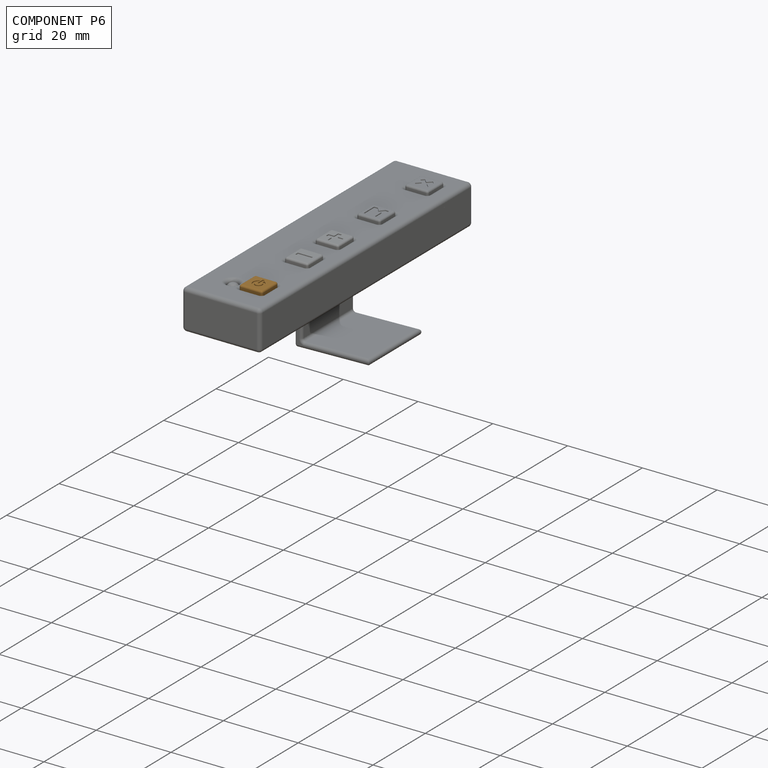
[diagram: component P6 — assembled]
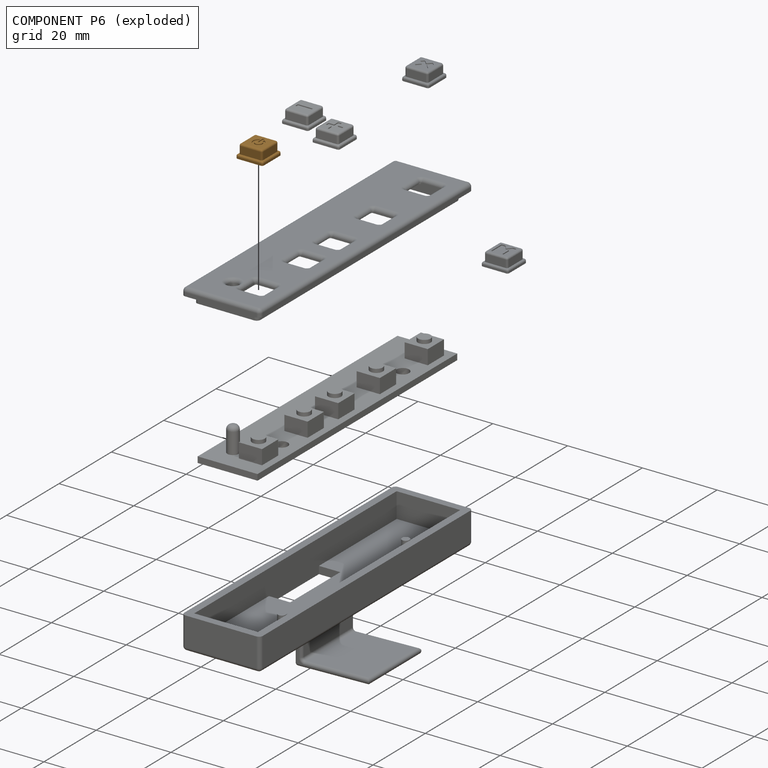
[diagram: component P6 — exploded]
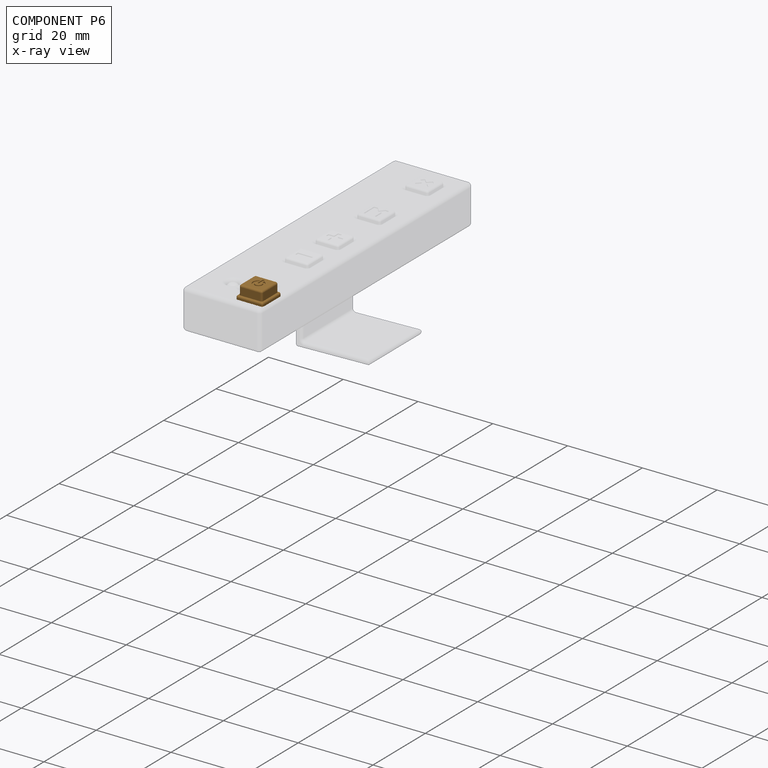
[diagram: component P6 — x-ray view]
COMPONENT P6 — geometry summary (no construction recipe available for this part):
  bounding box: 7.2 x 7.2 x 3.5 mm
  B-rep topology: 1 solid, 50 faces, 214 edges
  volume: 139 mm^3 (77% of its bounding box)
  symmetry: mirror-symmetric across its x mid-plane
Held by: PLANAR mate "Planar 3" to P2.
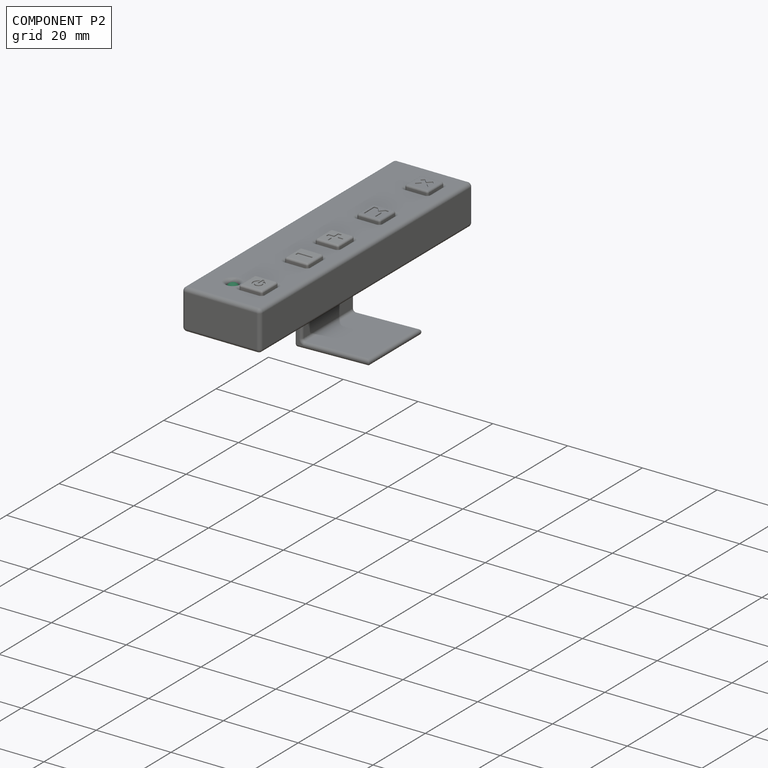
[diagram: component P2 — assembled]
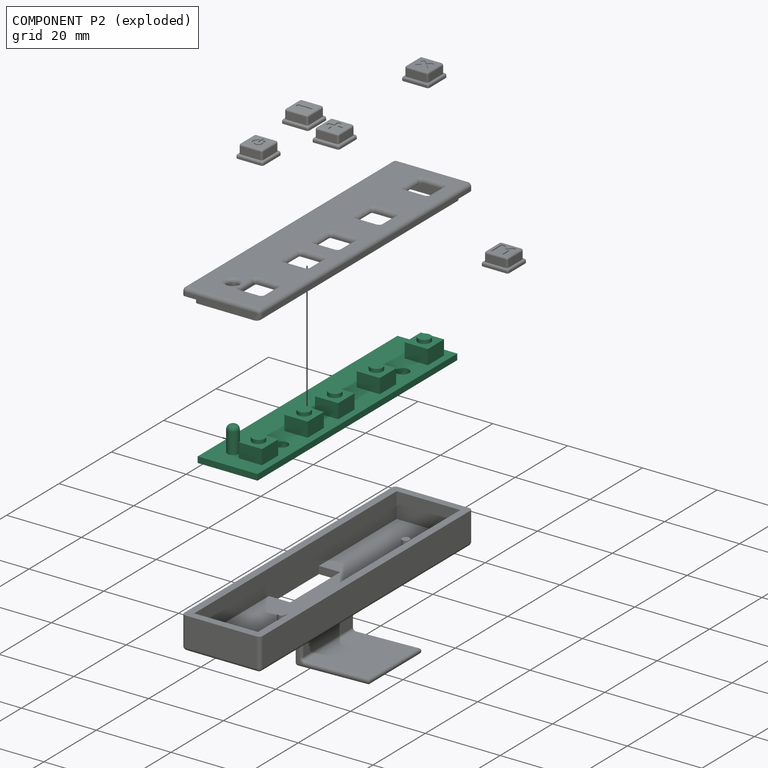
[diagram: component P2 — exploded]
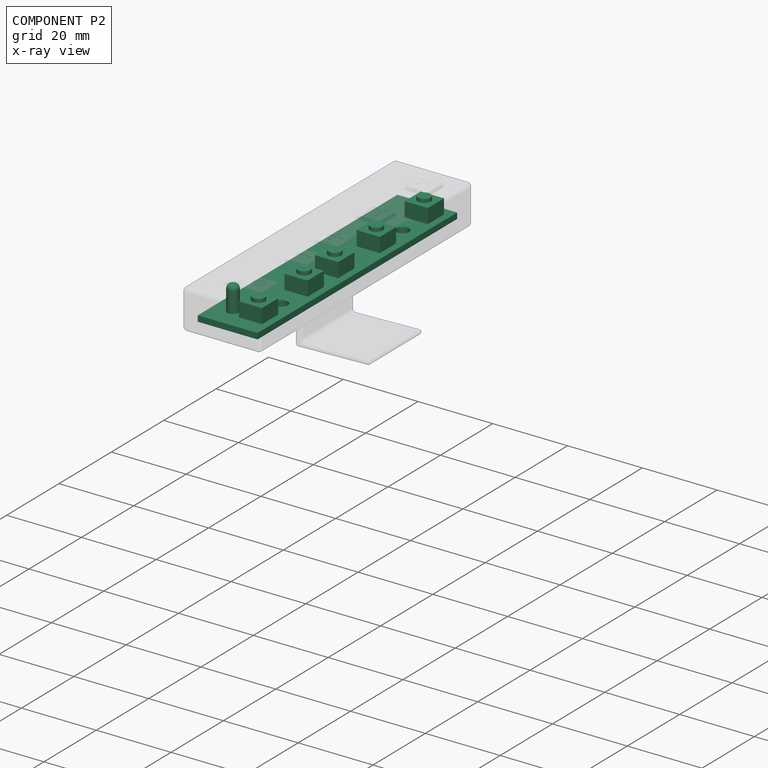
[diagram: component P2 — x-ray view]
COMPONENT P2 — recipe-attached (CADFS 00269409, mesh-verified: the recipe's output STEP matches this component's geometry to below the mesh-comparison resolution (tessellation chordal tolerance ~0.119 mm)).
Held by: PLANAR mate "Planar 6" to P1; PLANAR mate "Planar 4" to P4; PLANAR mate "Planar 7" to P7; PLANAR mate "Planar 1" to P3; PLANAR mate "Planar 3" to P6; PLANAR mate "Planar 5" to P0.
Construction recipe (FeatureScript — the CAD program that rebuilds this solid; sketch coordinates are in the units given by the * unit suffixes, e.g. mm):

FeatureScript 1511;
import(path : "onshape/std/geometry.fs", version : "1511.0");
import(path : "onshape/std/common.fs", version : "1511.0");
const mm = millimeter;
const VERTEX = EntityType.VERTEX;
const EDGE = EntityType.EDGE;
const FACE = EntityType.FACE;
const BODY = EntityType.BODY;
function v(x, y){return vector(x, y);}
function OD(order){return orderDisambiguation(order);}
function OSD(set){return originalSetDisambiguation(set);}
function TD(topology){return topologyDisambiguation(topology);}
function TDD(query){return trueDependencyDisambiguation(query);}
function sQuery(a, b, c) {return sketchEntityQuery(a, b, c);}

annotation { "Feature Type Name" : "Feature", "Feature Type Description" : "" }
export const myFeature = defineFeature(function(context is Context, id is Id, definition is map)
    precondition{}
    {
        {
            var Q0;
            Q0=qCreatedBy(makeId("Top.planeOp"),FACE);
            var sketch = newSketch(context, id + "F0", { "sketchPlane" : qUnion([Q0])});
            skLineSegment(sketch, "E0.bottom", {"start": v(8, 38.15) * mm, "end": v(-8, 38.15) * mm});
            skLineSegment(sketch, "E0.top", {"start": v(8, -38.15) * mm, "end": v(-8, -38.15) * mm});
            skLineSegment(sketch, "E0.left", {"start": v(8, 38.15) * mm, "end": v(8, -38.15) * mm});
            skLineSegment(sketch, "E0.right", {"start": v(-8, 38.15) * mm, "end": v(-8, -38.15) * mm});
            skPoint(sketch, "E0.middle", {"position": v(0, 0) * mm});
            skCircle(sketch, "E1", {"center": v(3.5, 23.75) * mm, "radius": 1.7 * mm});
            skCircle(sketch, "E2", {"center": v(3.5, -22.55) * mm, "radius": 1.7 * mm});
            skSolve(sketch);
        }
        {
            var Q0;
            Q0=makeQuery(id+"F0.imprint","IMPRINT",FACE,{"disambiguationData":[TD([[makeQuery(id+"F0.imprint","IMPRINT",EDGE,{"derivedFrom":sQuery(id+"F0.wireOp",EDGE,"E0.bottom")}),1.0]])]});
            extrude(context, id + "F1", {"entities" : qUnion([Q0]), "oppositeDirection" : true, "depth" : 1.6 * mm});
        }
        {
            var Q0;
            Q0=makeQuery(id+"F1.opExtrude","CAP_FACE",FACE,{"disambiguationData":[OSD([sQuery(id+"F0.wireOp",EDGE,"E0.bottom"),sQuery(id+"F0.wireOp",EDGE,"E0.top"),sQuery(id+"F0.wireOp",EDGE,"E0.left"),sQuery(id+"F0.wireOp",EDGE,"E0.right")])],"isStart":true});
            var sketch = newSketch(context, id + "F2", { "sketchPlane" : qUnion([Q0])});
            skLineSegment(sketch, "E3.bottom", {"start": v(6.2, 29.45) * mm, "end": v(0, 29.45) * mm});
            skLineSegment(sketch, "E3.top", {"start": v(6.2, 35.65) * mm, "end": v(0, 35.65) * mm});
            skLineSegment(sketch, "E3.left", {"start": v(6.2, 29.45) * mm, "end": v(6.2, 35.65) * mm});
            skLineSegment(sketch, "E3.right", {"start": v(0, 29.45) * mm, "end": v(0, 35.65) * mm});
            skLineSegment(sketch, "E4.bottom", {"start": v(6.2, 17.35) * mm, "end": v(0, 17.35) * mm});
            skLineSegment(sketch, "E4.top", {"start": v(6.2, 11.15) * mm, "end": v(0, 11.15) * mm});
            skLineSegment(sketch, "E4.left", {"start": v(6.2, 17.35) * mm, "end": v(6.2, 11.15) * mm});
            skLineSegment(sketch, "E4.right", {"start": v(0, 17.35) * mm, "end": v(0, 11.15) * mm});
            skLineSegment(sketch, "E5.bottom", {"start": v(6.2, 1.45) * mm, "end": v(0, 1.45) * mm});
            skLineSegment(sketch, "E5.top", {"start": v(6.2, -4.75) * mm, "end": v(0, -4.75) * mm});
            skLineSegment(sketch, "E5.left", {"start": v(6.2, 1.45) * mm, "end": v(6.2, -4.75) * mm});
            skLineSegment(sketch, "E5.right", {"start": v(0, 1.45) * mm, "end": v(0, -4.75) * mm});
            skLineSegment(sketch, "E6.bottom", {"start": v(6.2, -10.25) * mm, "end": v(0, -10.25) * mm});
            skLineSegment(sketch, "E6.top", {"start": v(6.2, -16.45) * mm, "end": v(0, -16.45) * mm});
            skLineSegment(sketch, "E6.left", {"start": v(6.2, -10.25) * mm, "end": v(6.2, -16.45) * mm});
            skLineSegment(sketch, "E6.right", {"start": v(0, -10.25) * mm, "end": v(0, -16.45) * mm});
            skLineSegment(sketch, "E7.bottom", {"start": v(6.2, -27.65) * mm, "end": v(0, -27.65) * mm});
            skLineSegment(sketch, "E7.top", {"start": v(6.2, -33.85) * mm, "end": v(0, -33.85) * mm});
            skLineSegment(sketch, "E7.left", {"start": v(6.2, -27.65) * mm, "end": v(6.2, -33.85) * mm});
            skLineSegment(sketch, "E7.right", {"start": v(0, -27.65) * mm, "end": v(0, -33.85) * mm});
            skCircle(sketch, "E8", {"center": v(-2.9, -31.95) * mm, "radius": 1.5 * mm});
            skCircle(sketch, "E9", {"center": v(3.1, -30.75) * mm, "radius": 1.7 * mm});
            skCircle(sketch, "E10", {"center": v(3.1, -13.35) * mm, "radius": 1.7 * mm});
            skPoint(sketch, "E10.centerSnap0", {"position": v(3.1, -10.25) * mm});
            skPoint(sketch, "E10.centerSnap1", {"position": v(6.2, -13.35) * mm});
            skCircle(sketch, "E11", {"center": v(3.1, -1.65) * mm, "radius": 1.7 * mm});
            skPoint(sketch, "E11.centerSnap0", {"position": v(6.2, -1.65) * mm});
            skPoint(sketch, "E11.centerSnap1", {"position": v(3.1, 1.45) * mm});
            skCircle(sketch, "E12", {"center": v(3.1, 14.25) * mm, "radius": 1.7 * mm});
            skPoint(sketch, "E12.centerSnap0", {"position": v(3.1, 17.35) * mm});
            skPoint(sketch, "E12.centerSnap1", {"position": v(6.2, 14.25) * mm});
            skCircle(sketch, "E13", {"center": v(3.1, 32.55) * mm, "radius": 1.7 * mm});
            skPoint(sketch, "E13.centerSnap0", {"position": v(3.1, 29.45) * mm});
            skPoint(sketch, "E13.centerSnap1", {"position": v(6.2, 32.55) * mm});
            skSolve(sketch);
        }
        {
            var Q0;
            Q0=makeQuery(id+"F2.imprint","IMPRINT",FACE,{"disambiguationData":[TD([[makeQuery(id+"F2.imprint","IMPRINT",EDGE,{"derivedFrom":sQuery(id+"F2.wireOp",EDGE,"E7.bottom")}),1.0]])]});
            var Q1;
            Q1=makeQuery(id+"F2.imprint","IMPRINT",FACE,{"disambiguationData":[TD([[makeQuery(id+"F2.imprint","IMPRINT",EDGE,{"derivedFrom":sQuery(id+"F2.wireOp",EDGE,"E6.bottom")}),1.0]])]});
            var Q2;
            Q2=makeQuery(id+"F2.imprint","IMPRINT",FACE,{"disambiguationData":[TD([[makeQuery(id+"F2.imprint","IMPRINT",EDGE,{"derivedFrom":sQuery(id+"F2.wireOp",EDGE,"E5.bottom")}),1.0]])]});
            var Q3;
            Q3=makeQuery(id+"F2.imprint","IMPRINT",FACE,{"disambiguationData":[TD([[makeQuery(id+"F2.imprint","IMPRINT",EDGE,{"derivedFrom":sQuery(id+"F2.wireOp",EDGE,"E4.bottom")}),1.0]])]});
            var Q4;
            Q4=makeQuery(id+"F2.imprint","IMPRINT",FACE,{"disambiguationData":[TD([[makeQuery(id+"F2.imprint","IMPRINT",EDGE,{"derivedFrom":sQuery(id+"F2.wireOp",EDGE,"E3.bottom")}),-1.0]])]});
            extrude(context, id + "F3", {"entities" : qUnion([Q0, Q1, Q2, Q3, Q4]), "operationType" : NewBodyOperationType.ADD, "depth" : 3.9 * mm});
        }
        {
            var Q0;
            Q0=makeQuery(id+"F2.imprint","IMPRINT",FACE,{"disambiguationData":[TD([[makeQuery(id+"F2.imprint","IMPRINT",EDGE,{"derivedFrom":sQuery(id+"F2.wireOp",EDGE,"E13")}),1.0]])]});
            var Q1;
            Q1=makeQuery(id+"F2.imprint","IMPRINT",FACE,{"disambiguationData":[TD([[makeQuery(id+"F2.imprint","IMPRINT",EDGE,{"derivedFrom":sQuery(id+"F2.wireOp",EDGE,"E12")}),1.0]])]});
            var Q2;
            Q2=makeQuery(id+"F2.imprint","IMPRINT",FACE,{"disambiguationData":[TD([[makeQuery(id+"F2.imprint","IMPRINT",EDGE,{"derivedFrom":sQuery(id+"F2.wireOp",EDGE,"E11")}),1.0]])]});
            var Q3;
            Q3=makeQuery(id+"F2.imprint","IMPRINT",FACE,{"disambiguationData":[TD([[makeQuery(id+"F2.imprint","IMPRINT",EDGE,{"derivedFrom":sQuery(id+"F2.wireOp",EDGE,"E10")}),1.0]])]});
            var Q4;
            Q4=makeQuery(id+"F2.imprint","IMPRINT",FACE,{"disambiguationData":[TD([[makeQuery(id+"F2.imprint","IMPRINT",EDGE,{"derivedFrom":sQuery(id+"F2.wireOp",EDGE,"E9")}),1.0]])]});
            extrude(context, id + "F4", {"entities" : qUnion([Q0, Q1, Q2, Q3, Q4]), "operationType" : NewBodyOperationType.ADD, "depth" : 4.9 * mm});
        }
        {
            var Q0;
            Q0=makeQuery(id+"F2.imprint","IMPRINT",FACE,{"disambiguationData":[TD([[makeQuery(id+"F2.imprint","IMPRINT",EDGE,{"derivedFrom":sQuery(id+"F2.wireOp",EDGE,"E8")}),1.0]])]});
            extrude(context, id + "F5", {"entities" : qUnion([Q0]), "operationType" : NewBodyOperationType.ADD, "depth" : 6.8 * mm});
        }
        {
            var Q0;
            Q0=makeQuery(id+"F5.opExtrude","CAP_EDGE",EDGE,{"disambiguationData":[OSD([sQuery(id+"F2.wireOp",EDGE,"E8")])],"isStart":false});
            fillet(context, id + "F6", {"entities" : qUnion([Q0]), "radius" : 1.2 * mm, "tangentPropagation" : true, "allowEdgeOverflow" : false});
        }
        {
            var Q0;
            Q0=makeQuery(id+"F1.opExtrude","CAP_FACE",FACE,{"disambiguationData":[OSD([sQuery(id+"F0.wireOp",EDGE,"E0.bottom"),sQuery(id+"F0.wireOp",EDGE,"E0.top"),sQuery(id+"F0.wireOp",EDGE,"E0.left"),sQuery(id+"F0.wireOp",EDGE,"E0.right"),sQuery(id+"F0.wireOp",EDGE,"E1"),sQuery(id+"F0.wireOp",EDGE,"E2")])],"isStart":false});
            var sketch = newSketch(context, id + "F7", { "sketchPlane" : qUnion([Q0])});
            skLineSegment(sketch, "E14.bottom", {"start": v(-8, -8.95) * mm, "end": v(-3.3, -8.95) * mm});
            skLineSegment(sketch, "E14.top", {"start": v(-8, 9.15) * mm, "end": v(-3.3, 9.15) * mm});
            skLineSegment(sketch, "E14.left", {"start": v(-8, -8.95) * mm, "end": v(-8, 9.15) * mm});
            skLineSegment(sketch, "E14.right", {"start": v(-3.3, -8.95) * mm, "end": v(-3.3, 9.15) * mm});
            skSolve(sketch);
        }
        {
            var Q0;
            Q0=makeQuery(id+"F7.imprint","IMPRINT",FACE,{"disambiguationData":[TD([[makeQuery(id+"F7.imprint","IMPRINT",EDGE,{"derivedFrom":sQuery(id+"F7.wireOp",EDGE,"E14.bottom")}),1.0]])]});
            extrude(context, id + "F8", {"entities" : qUnion([Q0]), "operationType" : NewBodyOperationType.ADD, "depth" : 5.5 * mm});
        }
    });
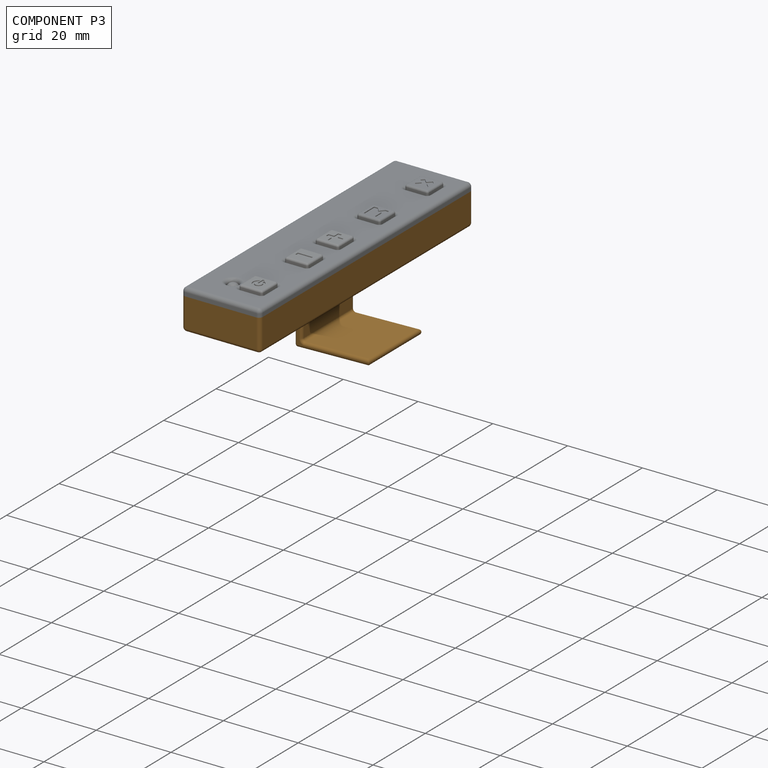
[diagram: component P3 — assembled]
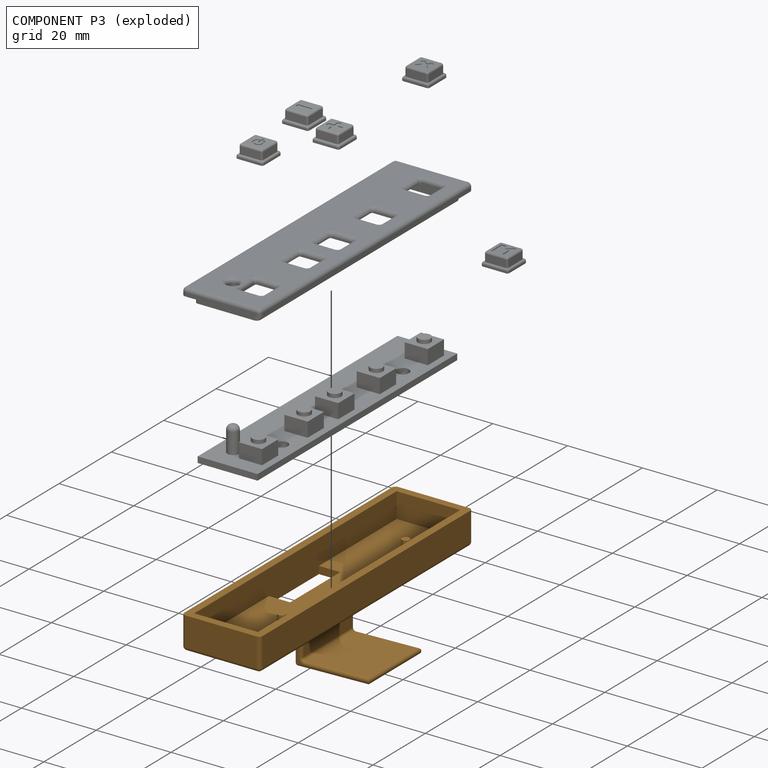
[diagram: component P3 — exploded]
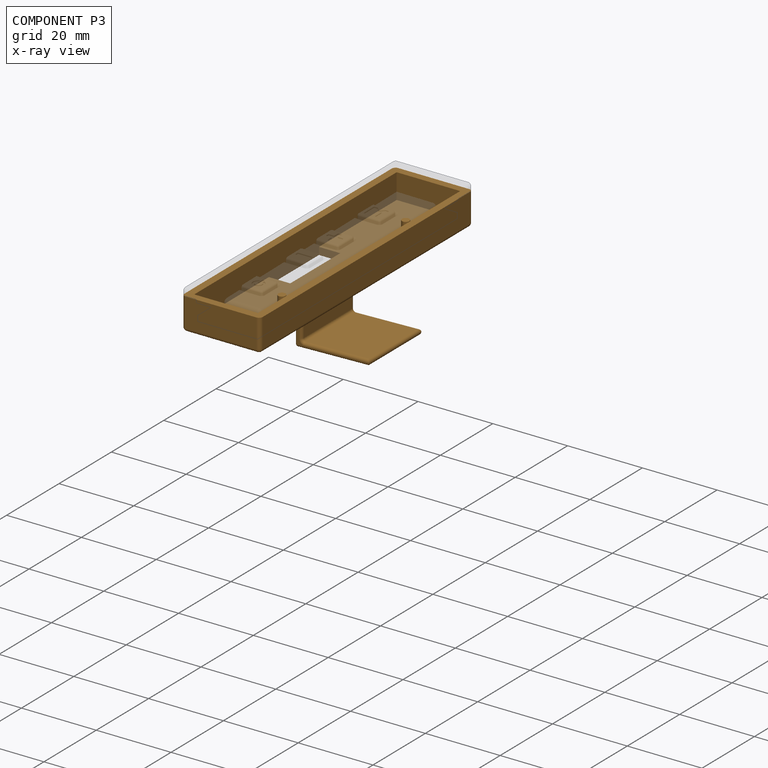
[diagram: component P3 — x-ray view]
COMPONENT P3 — geometry summary (no construction recipe available for this part):
  bounding box: 81.3 x 28.7 x 21.8 mm
  B-rep topology: 1 solid, 61 faces, 278 edges
  volume: 6872 mm^3 (14% of its bounding box)
Held by: PLANAR mate "Planar 1" to P2; PLANAR mate "Planar 2" to P5.
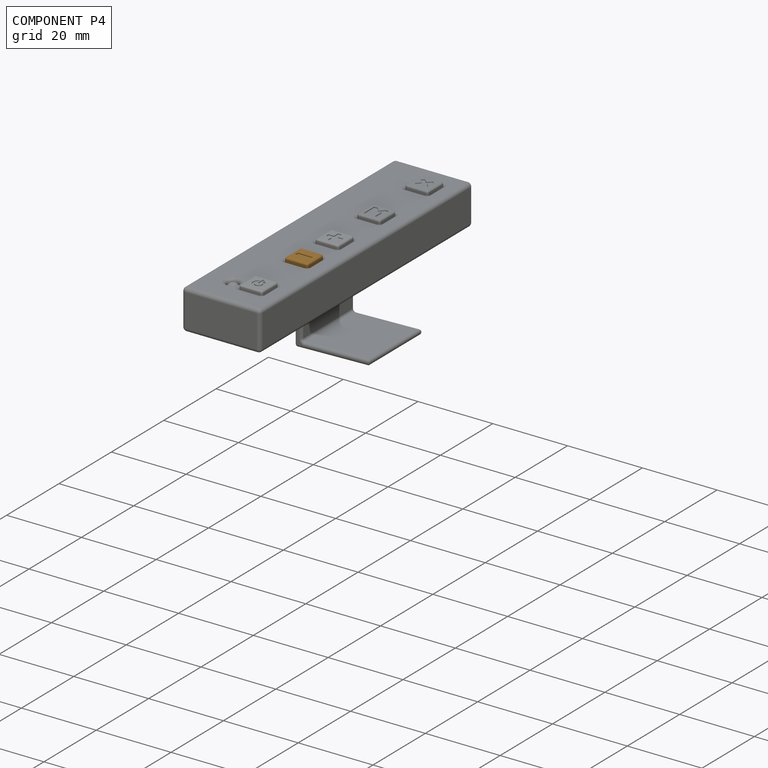
[diagram: component P4 — assembled]
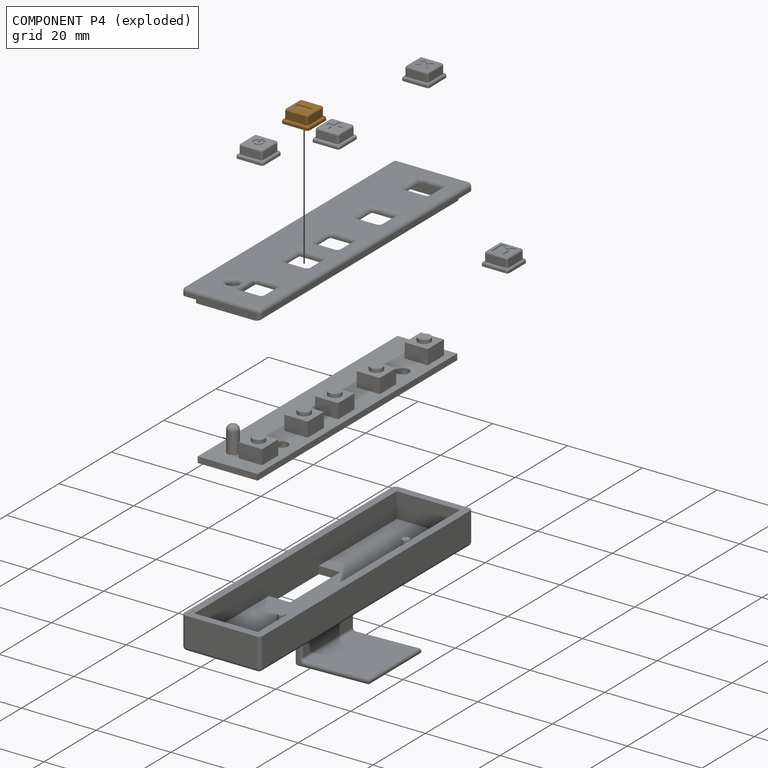
[diagram: component P4 — exploded]
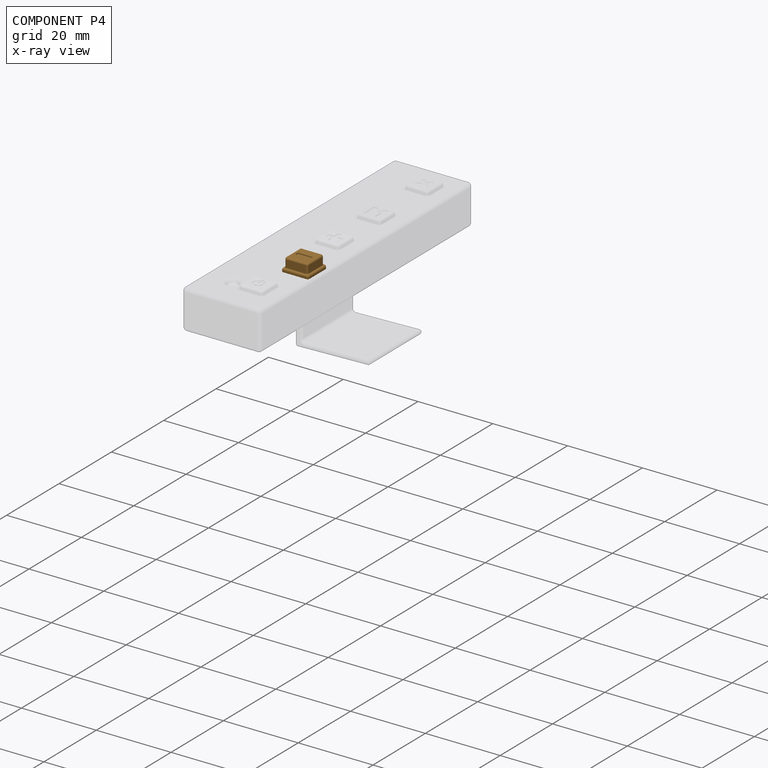
[diagram: component P4 — x-ray view]
COMPONENT P4 — geometry summary (no construction recipe available for this part):
  bounding box: 7.2 x 7.2 x 3.5 mm
  B-rep topology: 1 solid, 45 faces, 190 edges
  volume: 139 mm^3 (77% of its bounding box)
  symmetry: 2-fold rotationally symmetric about the z axis; mirror-symmetric across its x mid-plane, y mid-plane
Held by: PLANAR mate "Planar 4" to P2.
PROVENANCE & LICENSES
Assembly (occurrences, transforms, mates, per-part STEP geometry): AutoMate dataset, Zenodo record 7776208, CC0.
Construction recipes: CADFS (HuggingFace VladPyatov/CADFS, CC-BY-4.0, layered over the ABC dataset), FeatureScript reconstruction programs keyed by ABC model id.
Join: ABC meta listings map ABC model id -> Onshape documentId; within a shared document, parts are matched by geometric signature (bounding-box dims + volume at 0.1% relative tolerance, exact B-rep face/solid counts).
Verification: 2 of this assembly's 8 components carry a recipe attachment, and every attachment is mesh-verified: the CADFS STEP and the AutoMate member STEP were compared as meshes in their shared local frame (symmetric sampled-point-to-mesh distance); worst across the 2 attachments: below the mesh-comparison resolution (tessellation chordal tolerance ~0.126 mm) on a 84 mm part.
Renders: orthographic iso camera (az 35 / el 25); the floor grid conveys scale (grid pitch printed in each image; no ruler). In the exploded view each component is displaced by its stored offset vector: the offsets alone carry the explosion direction (mate normal/axis signs are not orientation cues and do not encode it), and separation distances are assigned per mate-chain, not proportionally to assembly-order depth.
